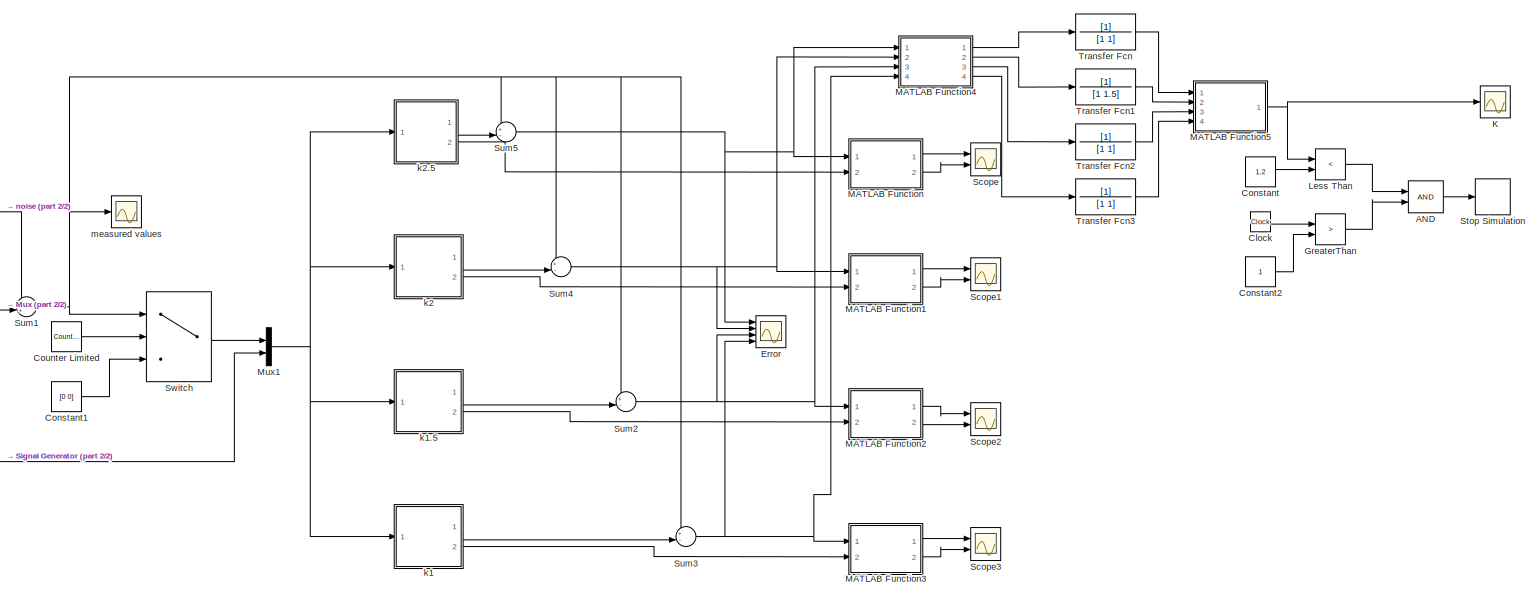
[diagram: root canvas - part 1/2, most of the canvas]
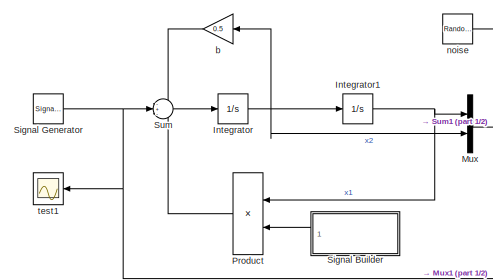
[diagram: root canvas - part 2/2, middle left region]
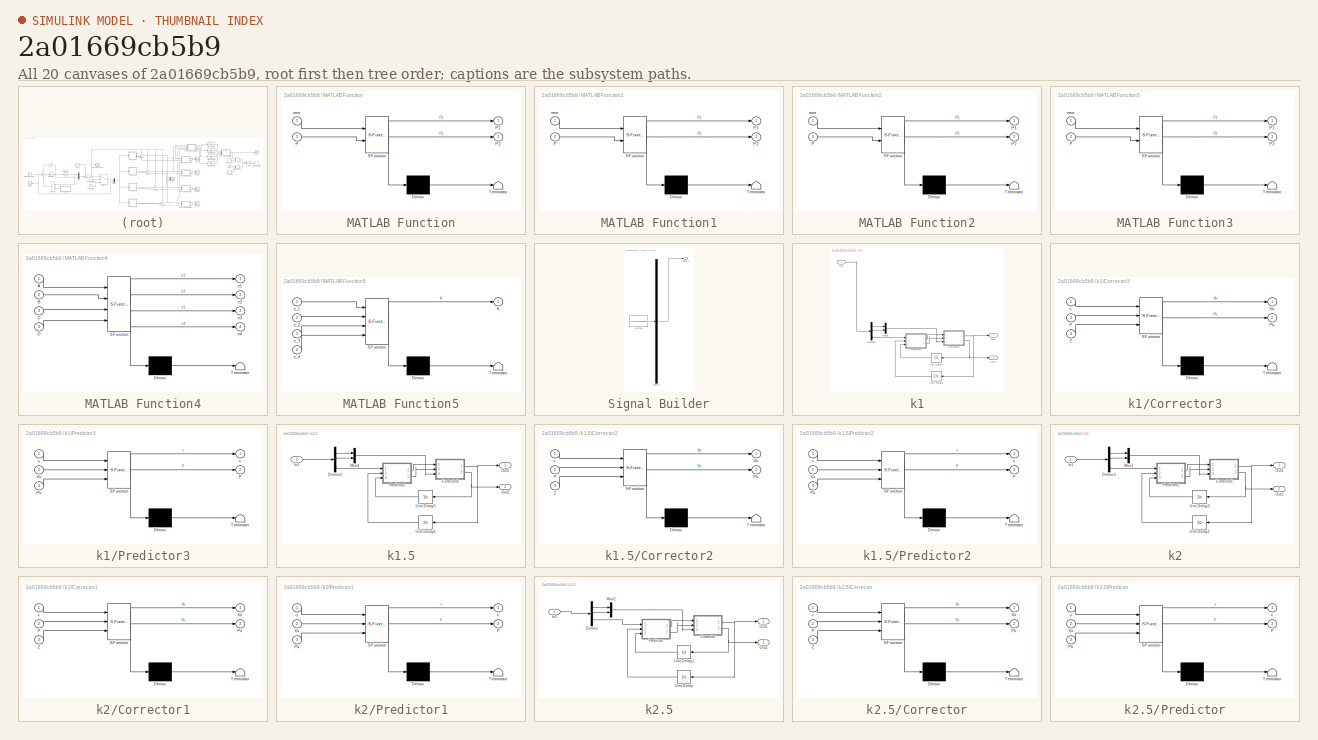
[diagram: thumbnail index - all 20 canvases of the model, root first then tree order]
MODEL slx_2a01669cb5b9
KIND model
CONFIG AbsTol = auto
CONFIG EnableMultiTasking = off
CONFIG FixedStep = 0.01
CONFIG MaxStep = auto
CONFIG MinStep = auto
CONFIG RelTol = 1e-3
CONFIG SampleTimeConstraint = Unconstrained
CONFIG Solver = FixedStepAuto
CONFIG SolverName = FixedStepAuto
CONFIG StartTime = 0.0
CONFIG StopTime = 100
BLOCK [Logic] AND
  AllPortsSameDT = off
  IconShape = distinctive
  OutDataTypeStr = boolean
  Ports = [2, 1]
BLOCK [Clock] Clock
BLOCK [Constant] Constant
  Value = 1.2
BLOCK [Constant] Constant1
  Value = [0 0]
BLOCK [Constant] Constant2
BLOCK [Reference] Counter Limited  REF=simulink/Sources/Counter
Limited
  Ports = [0, 1]
  SourceBlock = simulink/Sources/Counter\nLimited
  SourceProductBaseCode = SL
  SourceProductName = Simulink
  SourceType = Counter Limited
BLOCK [Scope] Error
  Floating = off
  NumInputPorts = 4
  Ports = [4]
  ScopeSpecificationString = Simulink.scopes.TimeScopeBlockCfg('CurrentConfiguration', extmgr.ConfigurationSet(extmgr.Configuration('Core','General UI',true),extmgr.Configuration('Core','Source UI',true),extmgr.Configuration('Sources','WiredSimulink',true,'DataLoggingVariableName','ScopeData1'),extmgr.Configuration('Visuals','Time Domain',true,'SerializedDisplays',{struct('MinYLimReal','-1.13475','MaxYLimReal','1.28355','YLab...<+3430ch>
BLOCK [RelationalOperator] GreaterThan
  InputSameDT = off
  Operator = >
  OutDataTypeStr = boolean
  Ports = [2, 1]
  RndMeth = Simplest
BLOCK [Integrator] Integrator
  Ports = [1, 1]
BLOCK [Integrator] Integrator1
  Ports = [1, 1]
BLOCK [Scope] K
  Floating = off
  NumInputPorts = 1
  Ports = [1]
  ScopeSpecificationString = Simulink.scopes.TimeScopeBlockCfg('CurrentConfiguration', extmgr.ConfigurationSet(extmgr.Configuration('Core','General UI',true),extmgr.Configuration('Core','Source UI',true),extmgr.Configuration('Sources','WiredSimulink',true,'DataLoggingVariableName','ScopeData6'),extmgr.Configuration('Visuals','Time Domain',true,'SerializedDisplays',{struct('MinYLimReal','1.375','MaxYLimReal','2.625','YLabelRea...<+1416ch>
BLOCK [RelationalOperator] Less Than
  InputSameDT = off
  Operator = <
  OutDataTypeStr = boolean
  Ports = [2, 1]
  RndMeth = Simplest
BLOCK [SubSystem] MATLAB Function
  ErrorFcn = Stateflow.Translate.translate
  PermitHierarchicalResolution = ExplicitOnly
  Ports = [2, 2]
  RequestExecContextInheritance = off
  SFBlockType = MATLAB Function
  TreatAsAtomicUnit = on
BLOCK [Demux] MATLAB Function/ Demux 
  Outputs = 1
  Ports = [1, 1]
BLOCK [S-Function] MATLAB Function/ SFunction 
  EnableBusSupport = on
  FunctionName = sf_sfun
  PortCounts = [2 3]
  Ports = [2, 3]
  SFcnIsStateOwnerBlock = off
  SFunctionDeploymentMode = off
  Tag = Stateflow S-Function 9
BLOCK [Terminator] MATLAB Function/ Terminator 
BLOCK [Inport] MATLAB Function/P
  IconDisplay = Port number
  Port = 2
BLOCK [Outport] MATLAB Function/P1
  IconDisplay = Port number
BLOCK [Outport] MATLAB Function/P2
  IconDisplay = Port number
  Port = 2
BLOCK [Inport] MATLAB Function/error
  IconDisplay = Port number
BLOCK [SubSystem] MATLAB Function1
  ErrorFcn = Stateflow.Translate.translate
  PermitHierarchicalResolution = ExplicitOnly
  Ports = [2, 2]
  RequestExecContextInheritance = off
  SFBlockType = MATLAB Function
  TreatAsAtomicUnit = on
BLOCK [Demux] MATLAB Function1/ Demux 
  Outputs = 1
  Ports = [1, 1]
BLOCK [S-Function] MATLAB Function1/ SFunction 
  EnableBusSupport = on
  FunctionName = sf_sfun
  PortCounts = [2 3]
  Ports = [2, 3]
  SFcnIsStateOwnerBlock = off
  SFunctionDeploymentMode = off
  Tag = Stateflow S-Function 10
BLOCK [Terminator] MATLAB Function1/ Terminator 
BLOCK [Inport] MATLAB Function1/P
  IconDisplay = Port number
  Port = 2
BLOCK [Outport] MATLAB Function1/P1
  IconDisplay = Port number
BLOCK [Outport] MATLAB Function1/P2
  IconDisplay = Port number
  Port = 2
BLOCK [Inport] MATLAB Function1/error
  IconDisplay = Port number
BLOCK [SubSystem] MATLAB Function2
  ErrorFcn = Stateflow.Translate.translate
  PermitHierarchicalResolution = ExplicitOnly
  Ports = [2, 2]
  RequestExecContextInheritance = off
  SFBlockType = MATLAB Function
  TreatAsAtomicUnit = on
BLOCK [Demux] MATLAB Function2/ Demux 
  Outputs = 1
  Ports = [1, 1]
BLOCK [S-Function] MATLAB Function2/ SFunction 
  EnableBusSupport = on
  FunctionName = sf_sfun
  PortCounts = [2 3]
  Ports = [2, 3]
  SFcnIsStateOwnerBlock = off
  SFunctionDeploymentMode = off
  Tag = Stateflow S-Function 11
BLOCK [Terminator] MATLAB Function2/ Terminator 
BLOCK [Inport] MATLAB Function2/P
  IconDisplay = Port number
  Port = 2
BLOCK [Outport] MATLAB Function2/P1
  IconDisplay = Port number
BLOCK [Outport] MATLAB Function2/P2
  IconDisplay = Port number
  Port = 2
BLOCK [Inport] MATLAB Function2/error
  IconDisplay = Port number
BLOCK [SubSystem] MATLAB Function3
  ErrorFcn = Stateflow.Translate.translate
  PermitHierarchicalResolution = ExplicitOnly
  Ports = [2, 2]
  RequestExecContextInheritance = off
  SFBlockType = MATLAB Function
  TreatAsAtomicUnit = on
BLOCK [Demux] MATLAB Function3/ Demux 
  Outputs = 1
  Ports = [1, 1]
BLOCK [S-Function] MATLAB Function3/ SFunction 
  EnableBusSupport = on
  FunctionName = sf_sfun
  PortCounts = [2 3]
  Ports = [2, 3]
  SFcnIsStateOwnerBlock = off
  SFunctionDeploymentMode = off
  Tag = Stateflow S-Function 12
BLOCK [Terminator] MATLAB Function3/ Terminator 
BLOCK [Inport] MATLAB Function3/P
  IconDisplay = Port number
  Port = 2
BLOCK [Outport] MATLAB Function3/P1
  IconDisplay = Port number
BLOCK [Outport] MATLAB Function3/P2
  IconDisplay = Port number
  Port = 2
BLOCK [Inport] MATLAB Function3/error
  IconDisplay = Port number
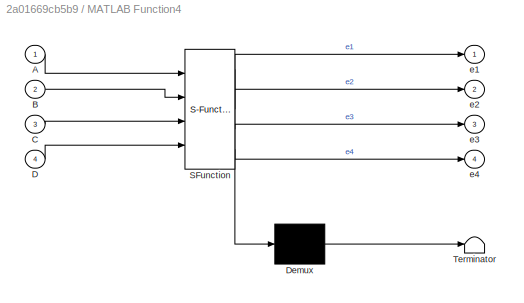
BLOCK [SubSystem] MATLAB Function4
  ErrorFcn = Stateflow.Translate.translate
  PermitHierarchicalResolution = ExplicitOnly
  Ports = [4, 4]
  RequestExecContextInheritance = off
  SFBlockType = MATLAB Function
  TreatAsAtomicUnit = on
BLOCK [Demux] MATLAB Function4/ Demux 
  Outputs = 1
  Ports = [1, 1]
BLOCK [S-Function] MATLAB Function4/ SFunction 
  EnableBusSupport = on
  FunctionName = sf_sfun
  PortCounts = [4 5]
  Ports = [4, 5]
  SFcnIsStateOwnerBlock = off
  SFunctionDeploymentMode = off
  Tag = Stateflow S-Function 13
BLOCK [Terminator] MATLAB Function4/ Terminator 
BLOCK [Inport] MATLAB Function4/A
  IconDisplay = Port number
BLOCK [Inport] MATLAB Function4/B
  IconDisplay = Port number
  Port = 2
BLOCK [Inport] MATLAB Function4/C
  IconDisplay = Port number
  Port = 3
BLOCK [Inport] MATLAB Function4/D
  IconDisplay = Port number
  Port = 4
BLOCK [Outport] MATLAB Function4/e1
  IconDisplay = Port number
BLOCK [Outport] MATLAB Function4/e2
  IconDisplay = Port number
  Port = 2
BLOCK [Outport] MATLAB Function4/e3
  IconDisplay = Port number
  Port = 3
BLOCK [Outport] MATLAB Function4/e4
  IconDisplay = Port number
  Port = 4
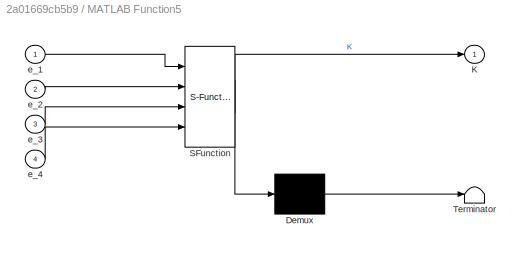
BLOCK [SubSystem] MATLAB Function5
  ErrorFcn = Stateflow.Translate.translate
  PermitHierarchicalResolution = ExplicitOnly
  Ports = [4, 1]
  RequestExecContextInheritance = off
  SFBlockType = MATLAB Function
  TreatAsAtomicUnit = on
BLOCK [Demux] MATLAB Function5/ Demux 
  Outputs = 1
  Ports = [1, 1]
BLOCK [S-Function] MATLAB Function5/ SFunction 
  EnableBusSupport = on
  FunctionName = sf_sfun
  PortCounts = [4 2]
  Ports = [4, 2]
  SFcnIsStateOwnerBlock = off
  SFunctionDeploymentMode = off
  Tag = Stateflow S-Function 14
BLOCK [Terminator] MATLAB Function5/ Terminator 
BLOCK [Outport] MATLAB Function5/K
  IconDisplay = Port number
BLOCK [Inport] MATLAB Function5/e_1
  IconDisplay = Port number
BLOCK [Inport] MATLAB Function5/e_2
  IconDisplay = Port number
  Port = 2
BLOCK [Inport] MATLAB Function5/e_3
  IconDisplay = Port number
  Port = 3
BLOCK [Inport] MATLAB Function5/e_4
  IconDisplay = Port number
  Port = 4
BLOCK [Mux] Mux
  DisplayOption = bar
  Inputs = 2
  Ports = [2, 1]
BLOCK [Mux] Mux1
  DisplayOption = bar
  Inputs = 2
  Ports = [2, 1]
BLOCK [Product] Product
  InputSameDT = off
  OutDataTypeStr = Inherit: Inherit via internal rule
  Ports = [2, 1]
  RndMeth = Floor
  SaturateOnIntegerOverflow = off
BLOCK [Scope] Scope
  Floating = off
  NumInputPorts = 2
  Ports = [2]
  ScopeSpecificationString = Simulink.scopes.TimeScopeBlockCfg('CurrentConfiguration', extmgr.ConfigurationSet(extmgr.Configuration('Core','General UI',true),extmgr.Configuration('Core','Source UI',true),extmgr.Configuration('Sources','WiredSimulink',true,'DataLoggingVariableName','ScopeData2'),extmgr.Configuration('Visuals','Time Domain',true,'SerializedDisplays',{struct('MinYLimReal','-1.50312','MaxYLimReal','1.50312','YLab...<+2128ch>
BLOCK [Scope] Scope1
  Floating = off
  NumInputPorts = 2
  Ports = [2]
  ScopeSpecificationString = Simulink.scopes.TimeScopeBlockCfg('CurrentConfiguration', extmgr.ConfigurationSet(extmgr.Configuration('Core','General UI',true),extmgr.Configuration('Core','Source UI',true),extmgr.Configuration('Sources','WiredSimulink',true,'DataLoggingVariableName','ScopeData3'),extmgr.Configuration('Visuals','Time Domain',true,'SerializedDisplays',{struct('MinYLimReal','-1.56774','MaxYLimReal','1.56774','YLab...<+2134ch>
BLOCK [Scope] Scope2
  Floating = off
  NumInputPorts = 2
  Ports = [2]
  ScopeSpecificationString = Simulink.scopes.TimeScopeBlockCfg('CurrentConfiguration', extmgr.ConfigurationSet(extmgr.Configuration('Core','General UI',true),extmgr.Configuration('Core','Source UI',true),extmgr.Configuration('Sources','WiredSimulink',true,'DataLoggingVariableName','ScopeData4'),extmgr.Configuration('Visuals','Time Domain',true,'SerializedDisplays',{struct('MinYLimReal','-1.66821','MaxYLimReal','1.66821','YLab...<+2134ch>
BLOCK [Scope] Scope3
  Floating = off
  NumInputPorts = 2
  Ports = [2]
  ScopeSpecificationString = Simulink.scopes.TimeScopeBlockCfg('CurrentConfiguration', extmgr.ConfigurationSet(extmgr.Configuration('Core','General UI',true),extmgr.Configuration('Core','Source UI',true),extmgr.Configuration('Sources','WiredSimulink',true,'DataLoggingVariableName','ScopeData5'),extmgr.Configuration('Visuals','Time Domain',true,'SerializedDisplays',{struct('MinYLimReal','-2.1193','MaxYLimReal','2.15226','YLabe...<+2133ch>
BLOCK [SubSystem] Signal Builder
  ClipboardFcn = sigbuilder_block('clipboard');
  CloseFcn = sigbuilder_block('close');
  ContinueFcn = sigbuilder_block('continue');
  CopyFcn = sigbuilder_block('copy');
  DeleteFcn = sigbuilder_block('delete');
  LoadFcn = sigbuilder_block('load');
  MaskHideContents = on
  ModelCloseFcn = sigbuilder_block('modelClose');
  NameChangeFcn = sigbuilder_block('namechange');
  OpenFcn = sigbuilder_block('open',[318.6 104.1 550.2 399.9 ]);
  PauseFcn = sigbuilder_block('pause');
  Ports = [0, 1]
  PreSaveFcn = sigbuilder_block('preSave');
  RequestExecContextInheritance = off
  StartFcn = sigbuilder_block('start');
  StopFcn = sigbuilder_block('stop');
  Tag = STV Subsys
BLOCK [Demux] Signal Builder/Demux
  Outputs = 1
  Ports = [1, 1]
  Tag = STV Demux
BLOCK [FromWorkspace] Signal Builder/FromWs
  SampleTime = 0
  Tag = STV FromWs
  VariableName = tuvar
  ZeroCross = on
BLOCK [Outport] Signal Builder/Signal 1
  IconDisplay = Port number
  Tag = STV Outport
BLOCK [SignalGenerator] Signal Generator
  Frequency = 0.05
  Ports = [0, 1]
  WaveForm = square
BLOCK [Stop] Stop Simulation
BLOCK [Sum] Sum
  IconShape = round
  InputSameDT = off
  Inputs = -+-
  OutDataTypeStr = Inherit: Inherit via internal rule
  Ports = [3, 1]
  SaturateOnIntegerOverflow = off
BLOCK [Sum] Sum1
  IconShape = round
  InputSameDT = off
  Inputs = ++|
  OutDataTypeStr = Inherit: Inherit via internal rule
  Ports = [2, 1]
  SaturateOnIntegerOverflow = off
BLOCK [Sum] Sum2
  IconShape = round
  InputSameDT = off
  Inputs = +-|
  OutDataTypeStr = Inherit: Inherit via internal rule
  Ports = [2, 1]
  SaturateOnIntegerOverflow = off
BLOCK [Sum] Sum3
  IconShape = round
  InputSameDT = off
  Inputs = +-|
  OutDataTypeStr = Inherit: Inherit via internal rule
  Ports = [2, 1]
  SaturateOnIntegerOverflow = off
BLOCK [Sum] Sum4
  IconShape = round
  InputSameDT = off
  Inputs = +-|
  OutDataTypeStr = Inherit: Inherit via internal rule
  Ports = [2, 1]
  SaturateOnIntegerOverflow = off
BLOCK [Sum] Sum5
  IconShape = round
  InputSameDT = off
  Inputs = +-|
  OutDataTypeStr = Inherit: Inherit via internal rule
  Ports = [2, 1]
  SaturateOnIntegerOverflow = off
BLOCK [Switch] Switch
  InputSameDT = off
  SaturateOnIntegerOverflow = off
  Threshold = 99
BLOCK [TransferFcn] Transfer Fcn
  Denominator = [1 1]
BLOCK [TransferFcn] Transfer Fcn1
  Denominator = [1 1.5]
BLOCK [TransferFcn] Transfer Fcn2
  Denominator = [1 1]
BLOCK [TransferFcn] Transfer Fcn3
  Denominator = [1 1]
BLOCK [Gain] b
  Gain = 0.5
  OutDataTypeStr = Inherit: Inherit via internal rule
  ParamDataTypeStr = Inherit: Inherit via internal rule
  SaturateOnIntegerOverflow = off
BLOCK [SubSystem] k1
  Ports = [1, 2]
  RequestExecContextInheritance = off
BLOCK [SubSystem] k1.5
  Ports = [1, 2]
  RequestExecContextInheritance = off
BLOCK [SubSystem] k1.5/Corrector2
  ErrorFcn = Stateflow.Translate.translate
  PermitHierarchicalResolution = ExplicitOnly
  Ports = [3, 2]
  RequestExecContextInheritance = off
  SFBlockType = MATLAB Function
  TreatAsAtomicUnit = on
BLOCK [Demux] k1.5/Corrector2/ Demux 
  DisplayOption = bar
  Outputs = 1
  Ports = [1, 1]
BLOCK [S-Function] k1.5/Corrector2/ SFunction 
  EnableBusSupport = on
  FunctionName = sf_sfun
  PortCounts = [3 3]
  Ports = [3, 3]
  SFcnIsStateOwnerBlock = off
  SFunctionDeploymentMode = off
  Tag = Stateflow S-Function 5
BLOCK [Terminator] k1.5/Corrector2/ Terminator 
BLOCK [Inport] k1.5/Corrector2/P
  IconDisplay = Port number
  Port = 2
BLOCK [Outport] k1.5/Corrector2/Pk
  IconDisplay = Port number
  Port = 2
BLOCK [Outport] k1.5/Corrector2/Xk
  IconDisplay = Port number
BLOCK [Inport] k1.5/Corrector2/Z
  IconDisplay = Port number
  Port = 3
BLOCK [Inport] k1.5/Corrector2/x
  IconDisplay = Port number
BLOCK [Demux] k1.5/Demux2
  DisplayOption = bar
  Outputs = 3
  Ports = [1, 3]
BLOCK [Inport] k1.5/In1
  IconDisplay = Port number
BLOCK [Mux] k1.5/Mux4
  DisplayOption = bar
  Inputs = 2
  Ports = [2, 1]
BLOCK [Outport] k1.5/Out1
  IconDisplay = Port number
BLOCK [Outport] k1.5/Out2
  IconDisplay = Port number
  Port = 2
BLOCK [SubSystem] k1.5/Predictor2
  ErrorFcn = Stateflow.Translate.translate
  PermitHierarchicalResolution = ExplicitOnly
  Ports = [3, 2]
  RequestExecContextInheritance = off
  SFBlockType = MATLAB Function
  TreatAsAtomicUnit = on
BLOCK [Demux] k1.5/Predictor2/ Demux 
  Outputs = 1
  Ports = [1, 1]
BLOCK [S-Function] k1.5/Predictor2/ SFunction 
  EnableBusSupport = on
  FunctionName = sf_sfun
  PortCounts = [3 3]
  Ports = [3, 3]
  SFcnIsStateOwnerBlock = off
  SFunctionDeploymentMode = off
  Tag = Stateflow S-Function 6
BLOCK [Terminator] k1.5/Predictor2/ Terminator 
BLOCK [Outport] k1.5/Predictor2/P
  IconDisplay = Port number
  Port = 2
BLOCK [Inport] k1.5/Predictor2/Pk
  IconDisplay = Port number
  Port = 3
BLOCK [Inport] k1.5/Predictor2/Xk
  IconDisplay = Port number
  Port = 2
BLOCK [Inport] k1.5/Predictor2/u
  IconDisplay = Port number
BLOCK [Outport] k1.5/Predictor2/x
  IconDisplay = Port number
BLOCK [UnitDelay] k1.5/Unit Delay4
  HasFrameUpgradeWarning = on
  InitialCondition = [0 0]
  SampleTime = -1
BLOCK [UnitDelay] k1.5/Unit Delay5
  HasFrameUpgradeWarning = on
  InitialCondition = eye(2)
  SampleTime = -1
BLOCK [SubSystem] k1/Corrector3
  ErrorFcn = Stateflow.Translate.translate
  PermitHierarchicalResolution = ExplicitOnly
  Ports = [3, 2]
  RequestExecContextInheritance = off
  SFBlockType = MATLAB Function
  TreatAsAtomicUnit = on
BLOCK [Demux] k1/Corrector3/ Demux 
  DisplayOption = bar
  Outputs = 1
  Ports = [1, 1]
BLOCK [S-Function] k1/Corrector3/ SFunction 
  EnableBusSupport = on
  FunctionName = sf_sfun
  PortCounts = [3 3]
  Ports = [3, 3]
  SFcnIsStateOwnerBlock = off
  SFunctionDeploymentMode = off
  Tag = Stateflow S-Function 7
BLOCK [Terminator] k1/Corrector3/ Terminator 
BLOCK [Inport] k1/Corrector3/P
  IconDisplay = Port number
  Port = 2
BLOCK [Outport] k1/Corrector3/Pk
  IconDisplay = Port number
  Port = 2
BLOCK [Outport] k1/Corrector3/Xk
  IconDisplay = Port number
BLOCK [Inport] k1/Corrector3/Z
  IconDisplay = Port number
  Port = 3
BLOCK [Inport] k1/Corrector3/x
  IconDisplay = Port number
BLOCK [Demux] k1/Demux3
  DisplayOption = bar
  Outputs = 3
  Ports = [1, 3]
BLOCK [Inport] k1/In1
  IconDisplay = Port number
BLOCK [Mux] k1/Mux5
  DisplayOption = bar
  Inputs = 2
  Ports = [2, 1]
BLOCK [Outport] k1/Out1
  IconDisplay = Port number
BLOCK [Outport] k1/Out2
  IconDisplay = Port number
  Port = 2
BLOCK [SubSystem] k1/Predictor3
  ErrorFcn = Stateflow.Translate.translate
  PermitHierarchicalResolution = ExplicitOnly
  Ports = [3, 2]
  RequestExecContextInheritance = off
  SFBlockType = MATLAB Function
  TreatAsAtomicUnit = on
BLOCK [Demux] k1/Predictor3/ Demux 
  Outputs = 1
  Ports = [1, 1]
BLOCK [S-Function] k1/Predictor3/ SFunction 
  EnableBusSupport = on
  FunctionName = sf_sfun
  PortCounts = [3 3]
  Ports = [3, 3]
  SFcnIsStateOwnerBlock = off
  SFunctionDeploymentMode = off
  Tag = Stateflow S-Function 8
BLOCK [Terminator] k1/Predictor3/ Terminator 
BLOCK [Outport] k1/Predictor3/P
  IconDisplay = Port number
  Port = 2
BLOCK [Inport] k1/Predictor3/Pk
  IconDisplay = Port number
  Port = 3
BLOCK [Inport] k1/Predictor3/Xk
  IconDisplay = Port number
  Port = 2
BLOCK [Inport] k1/Predictor3/u
  IconDisplay = Port number
BLOCK [Outport] k1/Predictor3/x
  IconDisplay = Port number
BLOCK [UnitDelay] k1/Unit Delay6
  HasFrameUpgradeWarning = on
  InitialCondition = [0 0]
  SampleTime = -1
BLOCK [UnitDelay] k1/Unit Delay7
  HasFrameUpgradeWarning = on
  InitialCondition = eye(2)
  SampleTime = -1
BLOCK [SubSystem] k2
  Ports = [1, 2]
  RequestExecContextInheritance = off
BLOCK [SubSystem] k2.5
  Ports = [1, 2]
  RequestExecContextInheritance = off
BLOCK [SubSystem] k2.5/Corrector
  ErrorFcn = Stateflow.Translate.translate
  PermitHierarchicalResolution = ExplicitOnly
  Ports = [3, 2]
  RequestExecContextInheritance = off
  SFBlockType = MATLAB Function
  TreatAsAtomicUnit = on
BLOCK [Demux] k2.5/Corrector/ Demux 
  DisplayOption = bar
  Outputs = 1
  Ports = [1, 1]
BLOCK [S-Function] k2.5/Corrector/ SFunction 
  EnableBusSupport = on
  FunctionName = sf_sfun
  PortCounts = [3 3]
  Ports = [3, 3]
  SFcnIsStateOwnerBlock = off
  SFunctionDeploymentMode = off
  Tag = Stateflow S-Function 1
BLOCK [Terminator] k2.5/Corrector/ Terminator 
BLOCK [Inport] k2.5/Corrector/P
  IconDisplay = Port number
  Port = 2
BLOCK [Outport] k2.5/Corrector/Pk
  IconDisplay = Port number
  Port = 2
BLOCK [Outport] k2.5/Corrector/Xk
  IconDisplay = Port number
BLOCK [Inport] k2.5/Corrector/Z
  IconDisplay = Port number
  Port = 3
BLOCK [Inport] k2.5/Corrector/x
  IconDisplay = Port number
BLOCK [Demux] k2.5/Demux
  DisplayOption = bar
  Outputs = 3
  Ports = [1, 3]
BLOCK [Inport] k2.5/In1
  IconDisplay = Port number
BLOCK [Mux] k2.5/Mux2
  DisplayOption = bar
  Inputs = 2
  Ports = [2, 1]
BLOCK [Outport] k2.5/Out1
  IconDisplay = Port number
BLOCK [Outport] k2.5/Out2
  IconDisplay = Port number
  Port = 2
BLOCK [SubSystem] k2.5/Predictor
  ErrorFcn = Stateflow.Translate.translate
  PermitHierarchicalResolution = ExplicitOnly
  Ports = [3, 2]
  RequestExecContextInheritance = off
  SFBlockType = MATLAB Function
  TreatAsAtomicUnit = on
BLOCK [Demux] k2.5/Predictor/ Demux 
  Outputs = 1
  Ports = [1, 1]
BLOCK [S-Function] k2.5/Predictor/ SFunction 
  EnableBusSupport = on
  FunctionName = sf_sfun
  PortCounts = [3 3]
  Ports = [3, 3]
  SFcnIsStateOwnerBlock = off
  SFunctionDeploymentMode = off
  Tag = Stateflow S-Function 2
BLOCK [Terminator] k2.5/Predictor/ Terminator 
BLOCK [Outport] k2.5/Predictor/P
  IconDisplay = Port number
  Port = 2
BLOCK [Inport] k2.5/Predictor/Pk
  IconDisplay = Port number
  Port = 3
BLOCK [Inport] k2.5/Predictor/Xk
  IconDisplay = Port number
  Port = 2
BLOCK [Inport] k2.5/Predictor/u
  IconDisplay = Port number
BLOCK [Outport] k2.5/Predictor/x
  IconDisplay = Port number
BLOCK [UnitDelay] k2.5/Unit Delay
  HasFrameUpgradeWarning = on
  InitialCondition = [0 0]
  SampleTime = -1
BLOCK [UnitDelay] k2.5/Unit Delay1
  HasFrameUpgradeWarning = on
  InitialCondition = eye(2)
  SampleTime = -1
BLOCK [SubSystem] k2/Corrector1
  ErrorFcn = Stateflow.Translate.translate
  PermitHierarchicalResolution = ExplicitOnly
  Ports = [3, 2]
  RequestExecContextInheritance = off
  SFBlockType = MATLAB Function
  TreatAsAtomicUnit = on
BLOCK [Demux] k2/Corrector1/ Demux 
  DisplayOption = bar
  Outputs = 1
  Ports = [1, 1]
BLOCK [S-Function] k2/Corrector1/ SFunction 
  EnableBusSupport = on
  FunctionName = sf_sfun
  PortCounts = [3 3]
  Ports = [3, 3]
  SFcnIsStateOwnerBlock = off
  SFunctionDeploymentMode = off
  Tag = Stateflow S-Function 3
BLOCK [Terminator] k2/Corrector1/ Terminator 
BLOCK [Inport] k2/Corrector1/P
  IconDisplay = Port number
  Port = 2
BLOCK [Outport] k2/Corrector1/Pk
  IconDisplay = Port number
  Port = 2
BLOCK [Outport] k2/Corrector1/Xk
  IconDisplay = Port number
BLOCK [Inport] k2/Corrector1/Z
  IconDisplay = Port number
  Port = 3
BLOCK [Inport] k2/Corrector1/x
  IconDisplay = Port number
BLOCK [Demux] k2/Demux1
  DisplayOption = bar
  Outputs = 3
  Ports = [1, 3]
BLOCK [Inport] k2/In1
  IconDisplay = Port number
BLOCK [Mux] k2/Mux3
  DisplayOption = bar
  Inputs = 2
  Ports = [2, 1]
BLOCK [Outport] k2/Out1
  IconDisplay = Port number
BLOCK [Outport] k2/Out2
  IconDisplay = Port number
  Port = 2
BLOCK [SubSystem] k2/Predictor1
  ErrorFcn = Stateflow.Translate.translate
  PermitHierarchicalResolution = ExplicitOnly
  Ports = [3, 2]
  RequestExecContextInheritance = off
  SFBlockType = MATLAB Function
  TreatAsAtomicUnit = on
BLOCK [Demux] k2/Predictor1/ Demux 
  Outputs = 1
  Ports = [1, 1]
BLOCK [S-Function] k2/Predictor1/ SFunction 
  EnableBusSupport = on
  FunctionName = sf_sfun
  PortCounts = [3 3]
  Ports = [3, 3]
  SFcnIsStateOwnerBlock = off
  SFunctionDeploymentMode = off
  Tag = Stateflow S-Function 4
BLOCK [Terminator] k2/Predictor1/ Terminator 
BLOCK [Outport] k2/Predictor1/P
  IconDisplay = Port number
  Port = 2
BLOCK [Inport] k2/Predictor1/Pk
  IconDisplay = Port number
  Port = 3
BLOCK [Inport] k2/Predictor1/Xk
  IconDisplay = Port number
  Port = 2
BLOCK [Inport] k2/Predictor1/u
  IconDisplay = Port number
BLOCK [Outport] k2/Predictor1/x
  IconDisplay = Port number
BLOCK [UnitDelay] k2/Unit Delay2
  HasFrameUpgradeWarning = on
  InitialCondition = [0 0]
  SampleTime = -1
BLOCK [UnitDelay] k2/Unit Delay3
  HasFrameUpgradeWarning = on
  InitialCondition = eye(2)
  SampleTime = -1
BLOCK [Scope] measured values
  Floating = off
  NumInputPorts = 1
  Ports = [1]
  ScopeSpecificationString = Simulink.scopes.TimeScopeBlockCfg('CurrentConfiguration', extmgr.ConfigurationSet(extmgr.Configuration('Core','General UI',true),extmgr.Configuration('Core','Source UI',true),extmgr.Configuration('Sources','WiredSimulink',true,'DataLoggingVariableName','ScopeData1'),extmgr.Configuration('Visuals','Time Domain',true,'SerializedDisplays',{struct('MinYLimReal','-2.46822','MaxYLimReal','2.51958','YLab...<+1374ch>
BLOCK [RandomNumber] noise
  Mean = [0 0]
  SampleTime = 0.01
  Seed = [5,8]
  Variance = [1 1]*0.001
BLOCK [Scope] test1
  Floating = off
  NumInputPorts = 1
  Ports = [1]
  ScopeSpecificationString = Simulink.scopes.TimeScopeBlockCfg('CurrentConfiguration', extmgr.ConfigurationSet(extmgr.Configuration('Core','General UI',true),extmgr.Configuration('Core','Source UI',true),extmgr.Configuration('Sources','WiredSimulink',true),extmgr.Configuration('Visuals','Time Domain',true,'SerializedDisplays',{struct('MinYLimReal','-1.25','MaxYLimReal','1.25','YLabelReal','','MinYLimMag','0.00000','MaxYLimMag...<+1318ch>
LINE AND:1 -> Stop Simulation:1
LINE Clock:1 -> GreaterThan:1
LINE Constant1:1 -> Switch:3
LINE Constant2:1 -> GreaterThan:2
LINE Constant:1 -> Less Than:2
LINE Counter Limited:1 -> Switch:2
LINE GreaterThan:1 -> AND:2
NET Integrator1:1 -> Mux:1, Product:1
NET Integrator:1 -> Integrator1:1, Mux:2, b:1
LINE Less Than:1 -> AND:1
LINE MATLAB Function1:1 -> Scope1:1
LINE MATLAB Function1:2 -> Scope1:2
LINE MATLAB Function2:1 -> Scope2:1
LINE MATLAB Function2:2 -> Scope2:2
LINE MATLAB Function3:1 -> Scope3:1
LINE MATLAB Function3:2 -> Scope3:2
LINE MATLAB Function4:1 -> Transfer Fcn:1
LINE MATLAB Function4:2 -> Transfer Fcn1:1
LINE MATLAB Function4:3 -> Transfer Fcn2:1
LINE MATLAB Function4:4 -> Transfer Fcn3:1
NET MATLAB Function5:1 -> K:1, Less Than:1
LINE MATLAB Function:1 -> Scope:1
LINE MATLAB Function:2 -> Scope:2
NET Mux1:1 -> k1.5:1, k1:1, k2.5:1, k2:1
LINE Mux:1 -> Sum1:2
LINE Product:1 -> Sum:3
LINE Signal Builder:1 -> Product:2
NET Signal Generator:1 -> Mux1:2, Sum:2, test1:1
NET Sum1:1 -> Sum2:1, Sum3:1, Sum4:1, Sum5:1, Switch:1, measured values:1
NET Sum2:1 -> Error:3, MATLAB Function2:1, MATLAB Function4:3
NET Sum3:1 -> Error:4, MATLAB Function3:1, MATLAB Function4:4
NET Sum4:1 -> Error:2, MATLAB Function1:1, MATLAB Function4:2
NET Sum5:1 -> Error:1, MATLAB Function4:1, MATLAB Function:1
LINE Sum:1 -> Integrator:1
LINE Switch:1 -> Mux1:1
LINE Transfer Fcn1:1 -> MATLAB Function5:2
LINE Transfer Fcn2:1 -> MATLAB Function5:3
LINE Transfer Fcn3:1 -> MATLAB Function5:4
LINE Transfer Fcn:1 -> MATLAB Function5:1
LINE b:1 -> Sum:1
NET k1.5/Corrector2:1 -> k1.5/Out1:1, k1.5/Unit Delay4:1
NET k1.5/Corrector2:2 -> k1.5/Out2:1, k1.5/Unit Delay5:1
LINE k1.5/Demux2:1 -> k1.5/Mux4:1
LINE k1.5/Demux2:2 -> k1.5/Mux4:2
LINE k1.5/Demux2:3 -> k1.5/Predictor2:1
LINE k1.5/In1:1 -> k1.5/Demux2:1
LINE k1.5/Mux4:1 -> k1.5/Corrector2:3
LINE k1.5/Predictor2:1 -> k1.5/Corrector2:1
LINE k1.5/Predictor2:2 -> k1.5/Corrector2:2
LINE k1.5/Unit Delay4:1 -> k1.5/Predictor2:2
LINE k1.5/Unit Delay5:1 -> k1.5/Predictor2:3
LINE k1.5:1 -> Sum2:2
LINE k1.5:2 -> MATLAB Function2:2
NET k1/Corrector3:1 -> k1/Out1:1, k1/Unit Delay6:1
NET k1/Corrector3:2 -> k1/Out2:1, k1/Unit Delay7:1
LINE k1/Demux3:1 -> k1/Mux5:1
LINE k1/Demux3:2 -> k1/Mux5:2
LINE k1/Demux3:3 -> k1/Predictor3:1
LINE k1/In1:1 -> k1/Demux3:1
LINE k1/Mux5:1 -> k1/Corrector3:3
LINE k1/Predictor3:1 -> k1/Corrector3:1
LINE k1/Predictor3:2 -> k1/Corrector3:2
LINE k1/Unit Delay6:1 -> k1/Predictor3:2
LINE k1/Unit Delay7:1 -> k1/Predictor3:3
LINE k1:1 -> Sum3:2
LINE k1:2 -> MATLAB Function3:2
NET k2.5/Corrector:1 -> k2.5/Out1:1, k2.5/Unit Delay:1
NET k2.5/Corrector:2 -> k2.5/Out2:1, k2.5/Unit Delay1:1
LINE k2.5/Demux:1 -> k2.5/Mux2:1
LINE k2.5/Demux:2 -> k2.5/Mux2:2
LINE k2.5/Demux:3 -> k2.5/Predictor:1
LINE k2.5/In1:1 -> k2.5/Demux:1
LINE k2.5/Mux2:1 -> k2.5/Corrector:3
LINE k2.5/Predictor:1 -> k2.5/Corrector:1
LINE k2.5/Predictor:2 -> k2.5/Corrector:2
LINE k2.5/Unit Delay1:1 -> k2.5/Predictor:3
LINE k2.5/Unit Delay:1 -> k2.5/Predictor:2
LINE k2.5:1 -> Sum5:2
LINE k2.5:2 -> MATLAB Function:2
NET k2/Corrector1:1 -> k2/Out1:1, k2/Unit Delay2:1
NET k2/Corrector1:2 -> k2/Out2:1, k2/Unit Delay3:1
LINE k2/Demux1:1 -> k2/Mux3:1
LINE k2/Demux1:2 -> k2/Mux3:2
LINE k2/Demux1:3 -> k2/Predictor1:1
LINE k2/In1:1 -> k2/Demux1:1
LINE k2/Mux3:1 -> k2/Corrector1:3
LINE k2/Predictor1:1 -> k2/Corrector1:1
LINE k2/Predictor1:2 -> k2/Corrector1:2
LINE k2/Unit Delay2:1 -> k2/Predictor1:2
LINE k2/Unit Delay3:1 -> k2/Predictor1:3
LINE k2:1 -> Sum4:2
LINE k2:2 -> MATLAB Function1:2
LINE noise:1 -> Sum1:1
note: NET lines group one-source signal fan-out (src -> all destinations, sorted); 1:1 wires keep LINE
CHART k2.5/Corrector states=1 transitions=1
  STATE_LABEL 'eML_blk_kernel()'
  STATE_LABEL 'SCRIPT:\nfunction [Xk,Pk] = Corrector(x,P,Z)\nH=eye(2); C=eye(2); R=eye(2)/0.01;\nif Z(1)==0 && Z(2)==0\n    Xk=x;\n    Pk=P;\nelse\n    K=P*transpose(H)*inv(H*P*transpose(H)+R);\n    Pk=(eye(2)-K*H)*P*transpose(eye(2)-K*H)+K*R*transpose(K);\n    Xk=x+K*(Z-H*x);\nend\nend'  <repeated x4 — deduplicated; at blocks: Corrector, Corrector1, Corrector2, Corrector3>
CHART k2.5/Predictor states=1 transitions=1
  STATE_LABEL 'eML_blk_kernel()'
  STATE_LABEL 'SCRIPT:\nfunction [x,P] = Predictor(u,Xk,Pk)\nk=2.5; b=0.5;\nA = [0 1;-k -b];\nAe=expm(A*0.01);\nB= [0;1];\nBd = (inv(A))*(Ae - eye(2))*B;\nQ=eye(2);\nF = [-A Q; zeros(2,2) transpose(A)];\nG = expm(F*0.01);\nQd=transpose(G(3:4,3:4))*G(1:2,3:4);\nx=Ae*Xk + Bd*u;\nP=(Ae*Pk*transpose(Ae)+Qd);\nend'
CHART k2/Corrector1 states=1 transitions=1
  STATE_LABEL 'eML_blk_kernel()'
CHART k2/Predictor1 states=1 transitions=1
  STATE_LABEL 'eML_blk_kernel()'
  STATE_LABEL 'SCRIPT:\nfunction [x,P] = Predictor(u,Xk,Pk)\nk=2; b=0.5;\nA = [0 1;-k -b];\nAe=expm(A*0.01);\nB= [0;1];\nBd = (inv(A))*(Ae - eye(2))*B;\nQ=eye(2);\nF = [-A Q; zeros(2,2) transpose(A)];\nG = expm(F*0.01);\nQd=transpose(G(3:4,3:4))*G(1:2,3:4);\nx=Ae*Xk + Bd*u;\nP=(Ae*Pk*transpose(Ae)+Qd);\nend'
CHART k1.5/Corrector2 states=1 transitions=1
  STATE_LABEL 'eML_blk_kernel()'
CHART k1.5/Predictor2 states=1 transitions=1
  STATE_LABEL 'eML_blk_kernel()'
  STATE_LABEL 'SCRIPT:\nfunction [x,P] = Predictor(u,Xk,Pk)\nk=1.5; b=0.5;\nA = [0 1;-k -b];\nAe=expm(A*0.01);\nB= [0;1];\nBd = (inv(A))*(Ae - eye(2))*B;\nQ=eye(2);\nF = [-A Q; zeros(2,2) transpose(A)];\nG = expm(F*0.01);\nQd=transpose(G(3:4,3:4))*G(1:2,3:4);\nx=Ae*Xk + Bd*u;\nP=(Ae*Pk*transpose(Ae)+Qd);\nend'
CHART k1/Corrector3 states=1 transitions=1
  STATE_LABEL 'eML_blk_kernel()'
CHART k1/Predictor3 states=1 transitions=1
  STATE_LABEL 'eML_blk_kernel()'
  STATE_LABEL 'SCRIPT:\nfunction [x,P] = Predictor(u,Xk,Pk)\nk=1; b=0.5;\nA = [0 1;-k -b];\nAe=expm(A*0.01);\nB= [0;1];\nBd = (inv(A))*(Ae - eye(2))*B;\nQ=eye(2);\nF = [-A Q; zeros(2,2) transpose(A)];\nG = expm(F*0.01);\nQd=transpose(G(3:4,3:4))*G(1:2,3:4);\nx=Ae*Xk + Bd*u;\nP=(Ae*Pk*transpose(Ae)+Qd);\nend'
CHART MATLAB Function states=1 transitions=1
  STATE_LABEL 'eML_blk_kernel()'
  STATE_LABEL 'SCRIPT:\nfunction [P1,P2]=covariance(error,P)\nP1=[error(1) sqrt(P(1,1)) -sqrt(P(1,1))];\nP2=[error(2) sqrt(P(2,2)) -sqrt(P(2,2))];\nend'
CHART MATLAB Function1 states=1 transitions=1
  STATE_LABEL 'eML_blk_kernel()'
  STATE_LABEL 'SCRIPT:\nfunction [P1,P2]=covariance(error,P)\nP1=[error(1) sqrt(P(1,1)) -sqrt(P(1,1))];\nP2=[error(2) sqrt(P(2,2)) -sqrt(P(2,2))];\nend'
CHART MATLAB Function2 states=1 transitions=1
  STATE_LABEL 'eML_blk_kernel()'
  STATE_LABEL 'SCRIPT:\nfunction [P1,P2]=covariance(error,P)\nP1=[error(1) sqrt(P(1,1)) -sqrt(P(1,1))];\nP2=[error(2) sqrt(P(2,2)) -sqrt(P(2,2))];\nend'
CHART MATLAB Function3 states=1 transitions=1
  STATE_LABEL 'eML_blk_kernel()'
  STATE_LABEL 'SCRIPT:\nfunction [P1,P2]=covariance(error,P)\nP1=[error(1) sqrt(P(1,1)) -sqrt(P(1,1))];\nP2=[error(2) sqrt(P(2,2)) -sqrt(P(2,2))];\nend'
CHART MATLAB Function4 states=1 transitions=1
  STATE_LABEL 'eML_blk_kernel()'
  STATE_LABEL 'SCRIPT:\nfunction [e1,e2,e3,e4] = errorblock(A,B,C,D)\ne1=sqrt(A(1)^2+A(2)^2);\ne2=sqrt(B(1)^2+B(2)^2);\ne3=sqrt(C(1)^2+C(2)^2);\ne4=sqrt(D(1)^2+D(2)^2);\nend\n'
CHART MATLAB Function5 states=1 transitions=1
  STATE_LABEL 'eML_blk_kernel()'
  STATE_LABEL 'SCRIPT:\nfunction K = k_estimator(e_1,e_2,e_3,e_4)\n[i,j]=min([e_1,e_2,e_3,e_4]);\nK=2.5;\nswitch j\n    case 1\n        K=2.5;\n    case 2\n        K=2;\n    case 3\n        K=1.5;\n    case 4\n        K=1;\nend\n'
